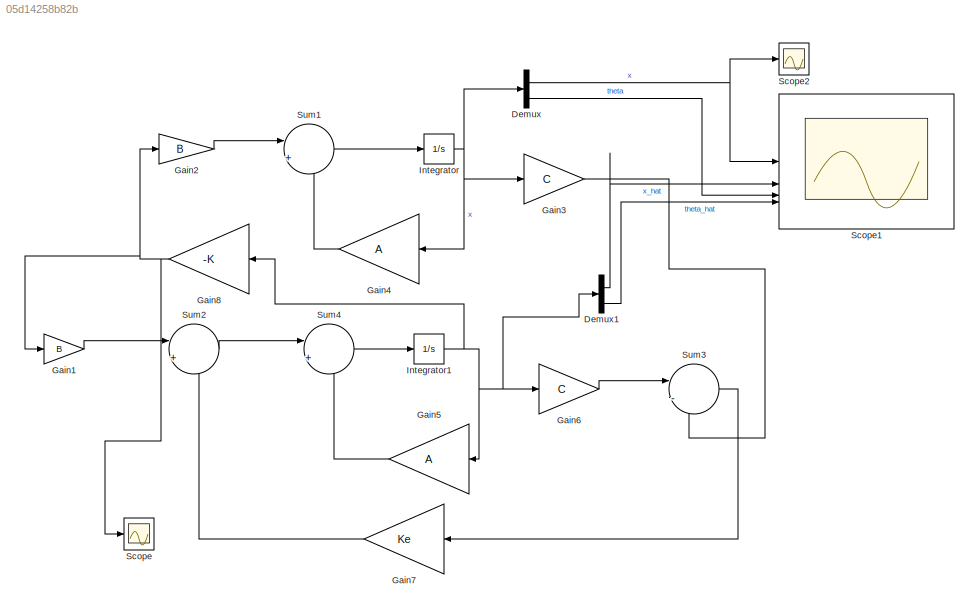
MODEL slx_05d14258b82b
KIND model
CONFIG AbsTol = auto
CONFIG EnableMultiTasking = off
CONFIG FixedStep = auto
CONFIG MaxStep = auto
CONFIG MinStep = auto
CONFIG RelTol = 1e-3
CONFIG SampleTimeConstraint = Unconstrained
CONFIG SolverName = VariableStepAuto
CONFIG StartTime = 0.0
CONFIG StopTime = 30
BLOCK [Demux] Demux
BLOCK [Demux] Demux1
BLOCK [Gain] Gain1
  Gain = B
  Multiplication = Matrix(K*u)
BLOCK [Gain] Gain2
  Gain = B
  Multiplication = Matrix(K*u)
BLOCK [Gain] Gain3
  Gain = C
  Multiplication = Matrix(K*u)
BLOCK [Gain] Gain4
  Gain = A
  Multiplication = Matrix(K*u)
BLOCK [Gain] Gain5
  Gain = A
  Multiplication = Matrix(K*u)
BLOCK [Gain] Gain6
  Gain = C
  Multiplication = Matrix(K*u)
BLOCK [Gain] Gain7
  Gain = Ke
  Multiplication = Matrix(K*u)
BLOCK [Gain] Gain8
  Gain = -K
  Multiplication = Matrix(K*u) (u vector)
BLOCK [Integrator] Integrator
  InitialCondition = x0
BLOCK [Integrator] Integrator1
  InitialCondition = x0_o
BLOCK [Scope] Scope
  ActiveDisplayYMaximum = 22994.668901251658
  ActiveDisplayYMinimum = -12817.968261708775
  Floating = off
  GraphicalSettings = {"Style":{"BackgroundColor":[0.12941176470588237,0.12941176470588237,0.12941176470588237],"AxesColor":[0.07058823529411765,0.07058823529411765,0.07058823529411765],"LabelsColor":[0.8509803921568627,0.8509803921568627,0.8509803921568627],"PreserveColors":false,"Visible":[true],"LineStyle":["-"],"LineWidth":[1.5],"BarWidth":[0.9],"LineColor":["auto"],"LineFaceAlpha":[1],"LineEdgeAlpha":[1],"Marker":...<+1993ch>
  MultipleDisplayCache = [{"MaxYLimMag":22994.668901251658,"MaxYLimReal":22994.668901251658,"MinYLimMag":0,"MinYLimReal":-12817.968261708775,"PlotAsMagnitudePhase":false,"ShowGrid":true,"ShowLegend":false,"Title":"%<SignalLabel>","YLabel":""}]
  NumInputPorts = 1
  ScopeFrameLocation = window
  WasSavedAsWebScope = on
  WindowPosition = [488.000000,222.000000,560.000000,420.000000,]
BLOCK [Scope] Scope1
  ActiveDisplayYMaximum = 0.012526501330689449
  ActiveDisplayYMinimum = -0.012738511976205038
  DataLoggingVariableName = ScopeData1
  Floating = off
  GraphicalSettings = {"Style":{"BackgroundColor":[0.12941176470588237,0.12941176470588237,0.12941176470588237],"AxesColor":[0.07058823529411765,0.07058823529411765,0.07058823529411765],"LabelsColor":[0.8509803921568627,0.8509803921568627,0.8509803921568627],"PreserveColors":false,"Visible":[true,true,true,true],"LineStyle":["-","-","-","-"],"LineWidth":[1.5,1.5,1.5,1.5],"BarWidth":[0.9,0.9,0.9,0.9],"LineColor":["auto"...<+3297ch>
  LayoutDimensionsString = [2,2]
  MultipleDisplayCache = [{"MaxYLimMag":0.012738511976205038,"MaxYLimReal":0.012526501330689449,"MinYLimMag":0,"MinYLimReal":-0.012738511976205038,"PlotAsMagnitudePhase":false,"ShowGrid":true,"ShowLegend":false,"Title":"%<SignalLabel>","YLabel":""},{"MaxYLimMag":0.028334069982911967,"MaxYLimReal":0.028334069982911967,"MinYLimMag":0,"MinYLimReal":-0.00500662984620771,"PlotAsMagnitudePhase":false,"ShowGrid":true,"ShowLegend...<+488ch>
  NumInputPorts = 4
  SampleTime = 1e-4
  ScopeFrameLocation = window
  WasSavedAsWebScope = on
  WindowPosition = [1.000000,49.000000,1536.000000,793.000000,]
BLOCK [Scope] Scope2
  ActiveDisplayYMaximum = 0.012526501330689449
  ActiveDisplayYMinimum = -0.012738511976205038
  DataLoggingVariableName = ScopeData2
  Floating = off
  GraphicalSettings = {"Style":{"BackgroundColor":[0.12941176470588237,0.12941176470588237,0.12941176470588237],"AxesColor":[0.07058823529411765,0.07058823529411765,0.07058823529411765],"LabelsColor":[0.8509803921568627,0.8509803921568627,0.8509803921568627],"PreserveColors":false,"Visible":[true],"LineStyle":["-"],"LineWidth":[1.5],"BarWidth":[0.9],"LineColor":["auto"],"LineFaceAlpha":[1],"LineEdgeAlpha":[1],"Marker":...<+1890ch>
  MultipleDisplayCache = [{"MaxYLimMag":0.012738511976205038,"MaxYLimReal":0.012526501330689449,"MinYLimMag":0,"MinYLimReal":-0.012738511976205038,"PlotAsMagnitudePhase":false,"ShowGrid":true,"ShowLegend":false,"Title":"%<SignalLabel>","YLabel":""}]
  NumInputPorts = 1
  SampleTime = 1e-4
  ScopeFrameLocation = window
  WasSavedAsWebScope = on
  WindowPosition = [488.000000,222.000000,560.000000,420.000000,]
BLOCK [Sum] Sum1
  Inputs = |++
BLOCK [Sum] Sum2
  Inputs = |++
BLOCK [Sum] Sum3
  Inputs = |-+
BLOCK [Sum] Sum4
  Inputs = |++
LINE Demux1:1 -> Scope1:2
LINE Demux1:3 -> Scope1:4
NET Demux:1 -> Scope1:1, Scope2:1
LINE Demux:3 -> Scope1:3
LINE Gain1:1 -> Sum2:1
LINE Gain2:1 -> Sum1:1
LINE Gain3:1 -> Sum3:2
LINE Gain4:1 -> Sum1:2
LINE Gain5:1 -> Sum4:2
LINE Gain6:1 -> Sum3:1
LINE Gain7:1 -> Sum2:2
NET Gain8:1 -> Gain1:1, Gain2:1, Scope:1
NET Integrator1:1 -> Demux1:1, Gain5:1, Gain6:1, Gain8:1
NET Integrator:1 -> Demux:1, Gain3:1, Gain4:1
LINE Sum1:1 -> Integrator:1
LINE Sum2:1 -> Sum4:1
LINE Sum3:1 -> Gain7:1
LINE Sum4:1 -> Integrator1:1
note: NET lines group one-source signal fan-out (src -> all destinations, sorted); 1:1 wires keep LINE
